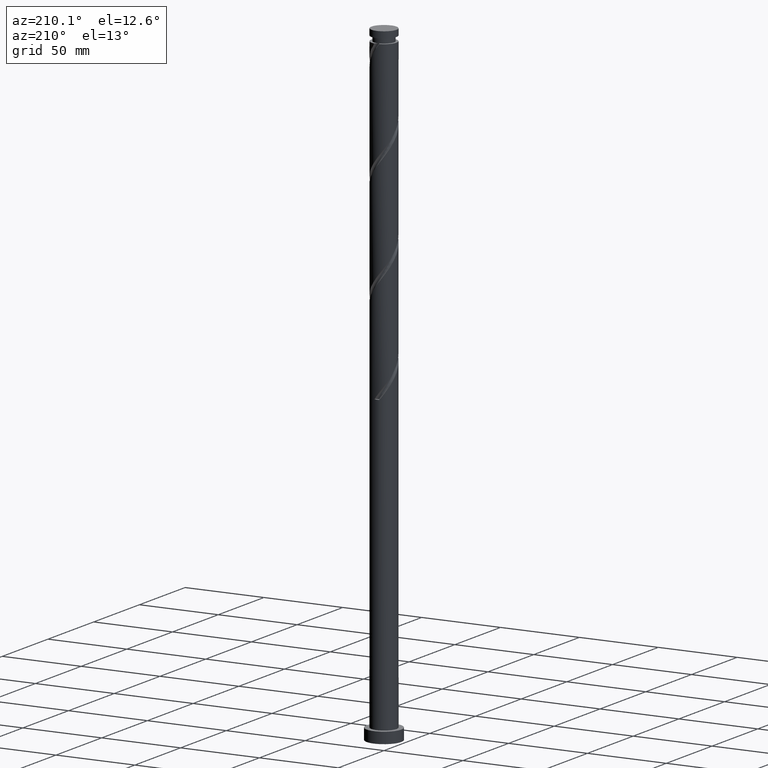
[diagram: clean part render]
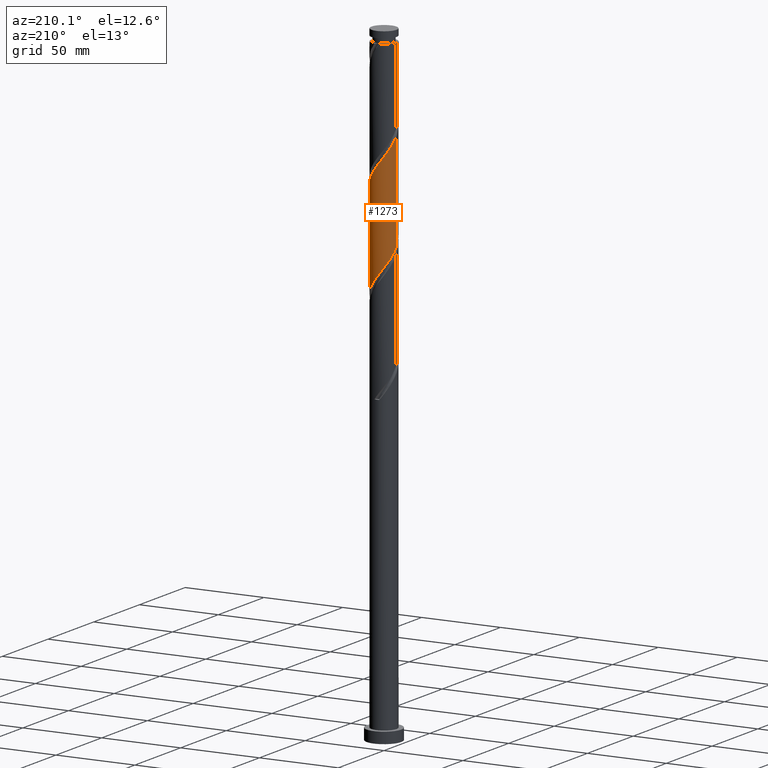
[diagram: same view with one face highlighted and labeled with its STEP entity id]
A machine part, auxiliary view. The second image highlights one B-rep face of the part: STEP entity #1273.
In plain terms, the highlighted cylindrical surface (edge-blend (fillet) strip) has radius 8 mm, axis along (-0, -0, -1).
Its self-contained STEP definition (entity closure, byte-faithful):
#24 = DIRECTION ( 'NONE',  ( -0.000000000000000000, -0.000000000000000000, -1.000000000000000000 ) ) ;
#41 = VERTEX_POINT ( 'NONE', #1679 ) ;
#51 = DIRECTION ( 'NONE',  ( -0.000000000000000000, -0.000000000000000000, -1.000000000000000000 ) ) ;
#56 = CARTESIAN_POINT ( 'NONE',  ( 7.948231931362837344, 0.9086303787922764830, 246.0827937810757078 ) ) ;
#110 = CARTESIAN_POINT ( 'NONE',  ( 5.327881728744660705, 6.026663911471989543, 253.8605715588535077 ) ) ;
#112 = CARTESIAN_POINT ( 'NONE',  ( -5.327881728744665146, 6.026663911472003754, 331.6383493366312791 ) ) ;
#135 = CARTESIAN_POINT ( 'NONE',  ( -7.378103982728151600, 3.204775068141456185, 273.8605715588534508 ) ) ;
#137 = CARTESIAN_POINT ( 'NONE',  ( 5.436733926407221418, 5.928652952465930603, 316.0827937810757362 ) ) ;
#179 = ORIENTED_EDGE ( 'NONE', *, *, #1067, .F. ) ;
#195 = AXIS2_PLACEMENT_3D ( 'NONE', #980, #1592, #196 ) ;
#196 = DIRECTION ( 'NONE',  ( -1.000000000000000000, 0.000000000000000000, 0.000000000000000000 ) ) ;
#220 = EDGE_CURVE ( 'NONE', #242, #41, #966, .T. ) ;
#242 = VERTEX_POINT ( 'NONE', #1164 ) ;
#264 = CARTESIAN_POINT ( 'NONE',  ( -7.318527200449889136, 3.338586712009341539, 336.0827937810756794 ) ) ;
#273 = CARTESIAN_POINT ( 'NONE',  ( -6.464468613789590812, 4.787237946735002581, 333.8605715588535077 ) ) ;
#280 = CARTESIAN_POINT ( 'NONE',  ( 0.07283633702544377309, 7.999668422379072830, 323.8605715588534508 ) ) ;
#320 = CARTESIAN_POINT ( 'NONE',  ( -5.993649215984697243, 5.298695035169130207, 270.5272382255201933 ) ) ;
#355 = VECTOR ( 'NONE', #51, 1000.000000000000000 ) ;
#356 = LINE ( 'NONE', #1937, #355 ) ;
#417 = CARTESIAN_POINT ( 'NONE',  ( 7.883184911777977533, 1.600748969715827918, 309.4161271144090506 ) ) ;
#425 = CARTESIAN_POINT ( 'NONE',  ( -2.415997103853502637, 7.672676170118332806, 327.1939048921868221 ) ) ;
#433 = CARTESIAN_POINT ( 'NONE',  ( -3.187218974997030330, 7.337685957127018099, 328.3050160032980216 ) ) ;
#439 = CARTESIAN_POINT ( 'NONE',  ( -8.000000000000001776, 0.3827519942939918152, 277.6996884990331864 ) ) ;
#497 = CARTESIAN_POINT ( 'NONE',  ( 5.896175171267119985, 5.406950929103494730, 252.7494604477423934 ) ) ;
#531 = CARTESIAN_POINT ( 'NONE',  ( 8.000000000000000000, 8.311318973889969874E-15, 244.8749036912638530 ) ) ;
#582 = VERTEX_POINT ( 'NONE', #1685 ) ;
#593 = CARTESIAN_POINT ( 'NONE',  ( 8.000000000000010658, 4.454627795358263519E-15, 307.2906838708875625 ) ) ;
#600 = CARTESIAN_POINT ( 'NONE',  ( 1.734469275985949466, 7.809712948032144553, 321.6383493366312223 ) ) ;
#718 = CARTESIAN_POINT ( 'NONE',  ( 4.643161287442612029, 6.514679827803838030, 254.9716826699646219 ) ) ;
#726 = CARTESIAN_POINT ( 'NONE',  ( -7.852731030260721390, 1.744023217652404423, 338.3050160032979079 ) ) ;
#750 = CARTESIAN_POINT ( 'NONE',  ( 7.963458872121475629, 0.7637557148918298067, 308.3050160032979079 ) ) ;
#776 = CARTESIAN_POINT ( 'NONE',  ( -8.000000000000000000, 1.076285910287909705E-14, 278.2082370245972243 ) ) ;
#870 = CARTESIAN_POINT ( 'NONE',  ( 1.591979899370598917, 7.839999999999999858, 259.4161271144091074 ) ) ;
#881 = CARTESIAN_POINT ( 'NONE',  ( 0.7679626948876935311, 8.007323829881674015, 260.5272382255201364 ) ) ;
#916 = CARTESIAN_POINT ( 'NONE',  ( -3.320297584678856495, 7.278435542695678606, 266.0827937810756794 ) ) ;
#918 = CARTESIAN_POINT ( 'NONE',  ( 4.085291986324416591, 6.929458204203540639, 318.3050160032980216 ) ) ;
#966 =( BOUNDED_CURVE ( )  B_SPLINE_CURVE ( 2, ( #776, #439, #1387, #1554, #1370, #135, #1720, #1250, #320, #1840, #2006, #1693, #916, #1701, #1709, #1063, #1946, #881, #870, #1508, #1338, #1497, #718, #110, #497, #1912, #1145, #1422, #1126, #1688, #56, #1644, #531 ),
 .UNSPECIFIED., .F., .T. ) 
 B_SPLINE_CURVE_WITH_KNOTS ( ( 3, 2, 2, 2, 2, 2, 2, 2, 2, 2, 2, 2, 2, 2, 2, 2, 3 ),
 ( 0.6795286012773114059, 0.6833333333333333481, 0.6916666666666666519, 0.6999999999999999556, 0.7083333333333333703, 0.7166666666666666741, 0.7249999999999999778, 0.7333333333333332815, 0.7416666666666666963, 0.7500000000000000000, 0.7583333333333333037, 0.7666666666666667185, 0.7750000000000000222, 0.7833333333333333259, 0.7916666666666666297, 0.8000000000000000444, 0.8045286012773112949 ),
 .UNSPECIFIED. ) 
 CURVE ( )  GEOMETRIC_REPRESENTATION_ITEM ( )  RATIONAL_B_SPLINE_CURVE ( ( 0.9066196499552146015, 0.9068171577856272147, 0.9090909090909261581, 0.9041108139711744318, 0.9090909090909261581, 0.9041108139711744318, 0.9090909090909261581, 0.9041108139711744318, 0.9090909090909261581, 0.9041108139711744318, 0.9090909090909261581, 0.9041108139711744318, 0.9090909090909261581, 0.9041108139711744318, 0.9090909090909261581, 0.9041108139711744318, 0.9090909090909261581, 0.9041108139711744318, 0.9090909090909261581, 0.9041108139711744318, 0.9090909090909261581, 0.9041108139711744318, 0.9090909090909261581, 0.9041108139711744318, 0.9090909090909261581, 0.9041108139711744318, 0.9090909090909261581, 0.9041108139711744318, 0.9090909090909261581, 0.9041108139711744318, 0.9090909090909261581, 0.9063845652764734862, 0.9066196499552146015 ) ) 
 REPRESENTATION_ITEM ( '' )  );
#969 = FACE_OUTER_BOUND ( 'NONE', #1213, .T. ) ;
#980 = CARTESIAN_POINT ( 'NONE',  ( 0.000000000000000000, 0.000000000000000000, 400.0000000000000000 ) ) ;
#1039 = CARTESIAN_POINT ( 'NONE',  ( -4.643161287442612029, 6.514679827803854018, 330.5272382255201364 ) ) ;
#1050 = CARTESIAN_POINT ( 'NONE',  ( -8.000000000000010658, -1.195873233653224964E-15, 340.6240172042208769 ) ) ;
#1058 = CARTESIAN_POINT ( 'NONE',  ( -5.896175171267127091, 5.406950929103502723, 332.7494604477423650 ) ) ;
#1063 = CARTESIAN_POINT ( 'NONE',  ( -0.9136353689385701138, 7.992013014876450328, 262.7494604477423650 ) ) ;
#1067 = EDGE_CURVE ( 'NONE', #1332, #242, #356, .T. ) ;
#1126 = CARTESIAN_POINT ( 'NONE',  ( 7.585629115355297714, 2.541304964830861657, 248.3050160032979079 ) ) ;
#1145 = CARTESIAN_POINT ( 'NONE',  ( 6.891497907119731536, 4.062912329372162290, 250.5272382255201364 ) ) ;
#1146 = CARTESIAN_POINT ( 'NONE',  ( -8.000000000000010658, -1.195873233653224964E-15, 340.6240172042208769 ) ) ;
#1164 = CARTESIAN_POINT ( 'NONE',  ( -8.000000000000000000, 1.076285910287909705E-14, 278.2082370245972243 ) ) ;
#1194 = CARTESIAN_POINT ( 'NONE',  ( 0.9136353689385744437, 7.992013014876460097, 322.7494604477423081 ) ) ;
#1202 = CARTESIAN_POINT ( 'NONE',  ( 5.993649215984714118, 5.298695035169133760, 314.9716826699645935 ) ) ;
#1211 = CARTESIAN_POINT ( 'NONE',  ( 3.320297584678864045, 7.278435542695687488, 319.4161271144089937 ) ) ;
#1213 = EDGE_LOOP ( 'NONE', ( #1857, #1271, #1673, #179 ) ) ;
#1220 = CARTESIAN_POINT ( 'NONE',  ( 8.000000000000010658, 0.3827519942940182385, 307.7992323964516004 ) ) ;
#1250 = CARTESIAN_POINT ( 'NONE',  ( -6.550564505562185502, 4.668737117872337805, 271.6383493366312223 ) ) ;
#1271 = ORIENTED_EDGE ( 'NONE', *, *, #1571, .T. ) ;
#1273 = ADVANCED_FACE ( 'NONE', ( #969 ), #1913, .T. ) ;
#1332 = VERTEX_POINT ( 'NONE', #1146 ) ;
#1338 = CARTESIAN_POINT ( 'NONE',  ( 3.187218974997031218, 7.337685957127007441, 257.1939048921868789 ) ) ;
#1340 = CARTESIAN_POINT ( 'NONE',  ( 2.555303183033317271, 7.627412881187830784, 320.5272382255201364 ) ) ;
#1365 = CARTESIAN_POINT ( 'NONE',  ( 7.378103982728165811, 3.204775068141452632, 311.6383493366312791 ) ) ;
#1370 = CARTESIAN_POINT ( 'NONE',  ( -7.630644447253058793, 2.402762018928644050, 274.9716826699647072 ) ) ;
#1387 = CARTESIAN_POINT ( 'NONE',  ( -7.963458872121463195, 0.7637557148918372452, 277.1939048921869357 ) ) ;
#1417 = EDGE_CURVE ( 'NONE', #582, #1332, #1591, .T. ) ;
#1422 = CARTESIAN_POINT ( 'NONE',  ( 7.318527200449882031, 3.338586712009333990, 249.4161271144089937 ) ) ;
#1497 = CARTESIAN_POINT ( 'NONE',  ( 3.958440846140556690, 7.002695744135690958, 256.0827937810757362 ) ) ;
#1508 = CARTESIAN_POINT ( 'NONE',  ( 2.415997103853506189, 7.672676170118322148, 258.3050160032979079 ) ) ;
#1510 = CARTESIAN_POINT ( 'NONE',  ( 6.964334244145181430, 3.936756093006899437, 312.7494604477423650 ) ) ;
#1515 = CARTESIAN_POINT ( 'NONE',  ( -7.585629115355306595, 2.541304964830873203, 337.1939048921867652 ) ) ;
#1554 = CARTESIAN_POINT ( 'NONE',  ( -7.883184911777966875, 1.600748969715829029, 276.0827937810756794 ) ) ;
#1571 = EDGE_CURVE ( 'NONE', #582, #41, #1744, .T. ) ;
#1591 =( BOUNDED_CURVE ( )  B_SPLINE_CURVE ( 2, ( #593, #1220, #750, #417, #1842, #1365, #1510, #1975, #1202, #137, #1661, #918, #1211, #1340, #600, #1194, #280, #1991, #1696, #425, #433, #1810, #1039, #112, #1058, #273, #1680, #264, #1515, #726, #1969, #1984, #1050 ),
 .UNSPECIFIED., .F., .T. ) 
 B_SPLINE_CURVE_WITH_KNOTS ( ( 3, 2, 2, 2, 2, 2, 2, 2, 2, 2, 2, 2, 2, 2, 2, 2, 3 ),
 ( 0.4295286012773117390, 0.4333333333333333481, 0.4416666666666666519, 0.4499999999999999556, 0.4583333333333333703, 0.4666666666666666741, 0.4749999999999999778, 0.4833333333333332815, 0.4916666666666666963, 0.5000000000000000000, 0.5083333333333333037, 0.5166666666666666075, 0.5250000000000000222, 0.5333333333333333259, 0.5416666666666667407, 0.5500000000000000444, 0.5545286012773118500 ),
 .UNSPECIFIED. ) 
 CURVE ( )  GEOMETRIC_REPRESENTATION_ITEM ( )  RATIONAL_B_SPLINE_CURVE ( ( 0.9066196499552205967, 0.9068171577856334320, 0.9090909090909321533, 0.9041108139711804270, 0.9090909090909321533, 0.9041108139711804270, 0.9090909090909321533, 0.9041108139711804270, 0.9090909090909321533, 0.9041108139711804270, 0.9090909090909321533, 0.9041108139711804270, 0.9090909090909321533, 0.9041108139711804270, 0.9090909090909321533, 0.9041108139711804270, 0.9090909090909321533, 0.9041108139711804270, 0.9090909090909321533, 0.9041108139711804270, 0.9090909090909321533, 0.9041108139711804270, 0.9090909090909321533, 0.9041108139711804270, 0.9090909090909321533, 0.9041108139711804270, 0.9090909090909321533, 0.9041108139711804270, 0.9090909090909321533, 0.9041108139711804270, 0.9090909090909321533, 0.9063845652764790373, 0.9066196499552204857 ) ) 
 REPRESENTATION_ITEM ( '' )  );
#1592 = DIRECTION ( 'NONE',  ( -0.000000000000000000, -0.000000000000000000, -1.000000000000000000 ) ) ;
#1644 = CARTESIAN_POINT ( 'NONE',  ( 7.999999999999998224, 0.4557898995714739221, 245.4804950006484319 ) ) ;
#1661 = CARTESIAN_POINT ( 'NONE',  ( 4.761012956365819448, 6.429055578334734733, 317.1939048921868789 ) ) ;
#1668 = VECTOR ( 'NONE', #24, 1000.000000000000000 ) ;
#1673 = ORIENTED_EDGE ( 'NONE', *, *, #220, .F. ) ;
#1679 = CARTESIAN_POINT ( 'NONE',  ( 8.000000000000000000, 8.311318973889969874E-15, 244.8749036912638530 ) ) ;
#1680 = CARTESIAN_POINT ( 'NONE',  ( -6.891497907119741306, 4.062912329372172060, 334.9716826699645935 ) ) ;
#1685 = CARTESIAN_POINT ( 'NONE',  ( 8.000000000000010658, 4.454627795358263519E-15, 307.2906838708875625 ) ) ;
#1688 = CARTESIAN_POINT ( 'NONE',  ( 7.852731030260713396, 1.744023217652395541, 247.1939048921868789 ) ) ;
#1693 = CARTESIAN_POINT ( 'NONE',  ( -4.085291986324403268, 6.929458204203534422, 267.1939048921868789 ) ) ;
#1696 = CARTESIAN_POINT ( 'NONE',  ( -1.591979899370595364, 7.840000000000008740, 326.0827937810756794 ) ) ;
#1701 = CARTESIAN_POINT ( 'NONE',  ( -2.555303183033309278, 7.627412881187821014, 264.9716826699646504 ) ) ;
#1703 = CARTESIAN_POINT ( 'NONE',  ( 8.000000000000000000, 9.797174393178825657E-16, 400.0000000000000000 ) ) ;
#1709 = CARTESIAN_POINT ( 'NONE',  ( -1.734469275985939030, 7.809712948032135671, 263.8605715588534508 ) ) ;
#1720 = CARTESIAN_POINT ( 'NONE',  ( -6.964334244145168995, 3.936756093006895885, 272.7494604477424787 ) ) ;
#1744 = LINE ( 'NONE', #1703, #1668 ) ;
#1810 = CARTESIAN_POINT ( 'NONE',  ( -3.958440846140559355, 7.002695744135703393, 329.4161271144090506 ) ) ;
#1840 = CARTESIAN_POINT ( 'NONE',  ( -5.436733926407212536, 5.928652952465924386, 269.4161271144091074 ) ) ;
#1842 = CARTESIAN_POINT ( 'NONE',  ( 7.630644447253070339, 2.402762018928641830, 310.5272382255201933 ) ) ;
#1857 = ORIENTED_EDGE ( 'NONE', *, *, #1417, .F. ) ;
#1912 = CARTESIAN_POINT ( 'NONE',  ( 6.464468613789585483, 4.787237946734987482, 251.6383493366312791 ) ) ;
#1913 = CYLINDRICAL_SURFACE ( 'NONE', #195, 8.000000000000000000 ) ;
#1937 = CARTESIAN_POINT ( 'NONE',  ( -8.000000000000000000, 0.000000000000000000, 400.0000000000000000 ) ) ;
#1946 = CARTESIAN_POINT ( 'NONE',  ( -0.07283633702543784727, 7.999668422379062172, 261.6383493366312223 ) ) ;
#1969 = CARTESIAN_POINT ( 'NONE',  ( -7.948231931362846225, 0.9086303787922809239, 339.4161271144090506 ) ) ;
#1975 = CARTESIAN_POINT ( 'NONE',  ( 6.550564505562199713, 4.668737117872338693, 313.8605715588533940 ) ) ;
#1984 = CARTESIAN_POINT ( 'NONE',  ( -8.000000000000015987, 0.4557898995714249613, 340.0184258948364118 ) ) ;
#1991 = CARTESIAN_POINT ( 'NONE',  ( -0.7679626948876867587, 8.007323829881686450, 324.9716826699645935 ) ) ;
#2006 = CARTESIAN_POINT ( 'NONE',  ( -4.761012956365806126, 6.429055578334728516, 268.3050160032978511 ) ) ;